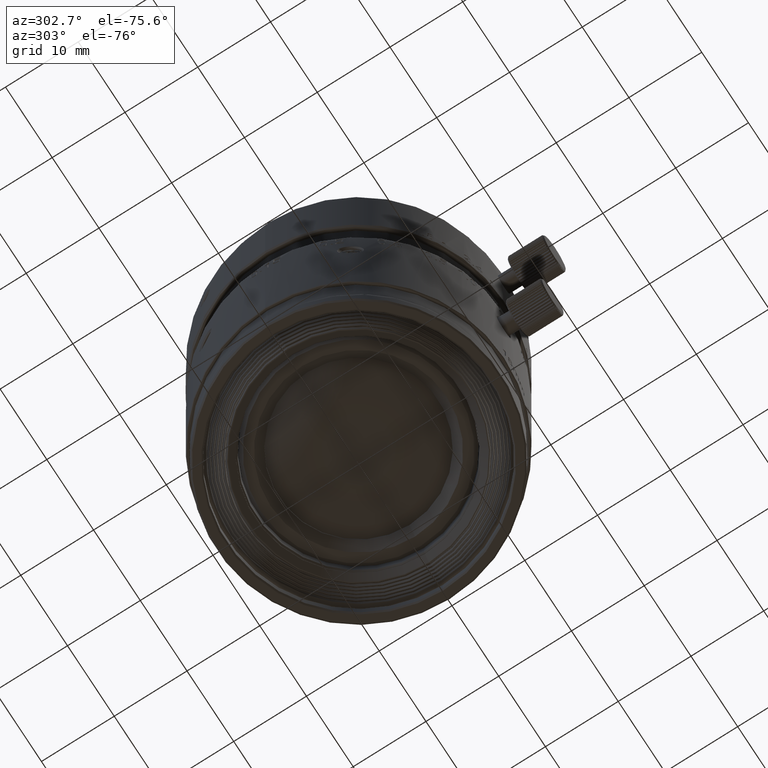
[diagram: clean part render]
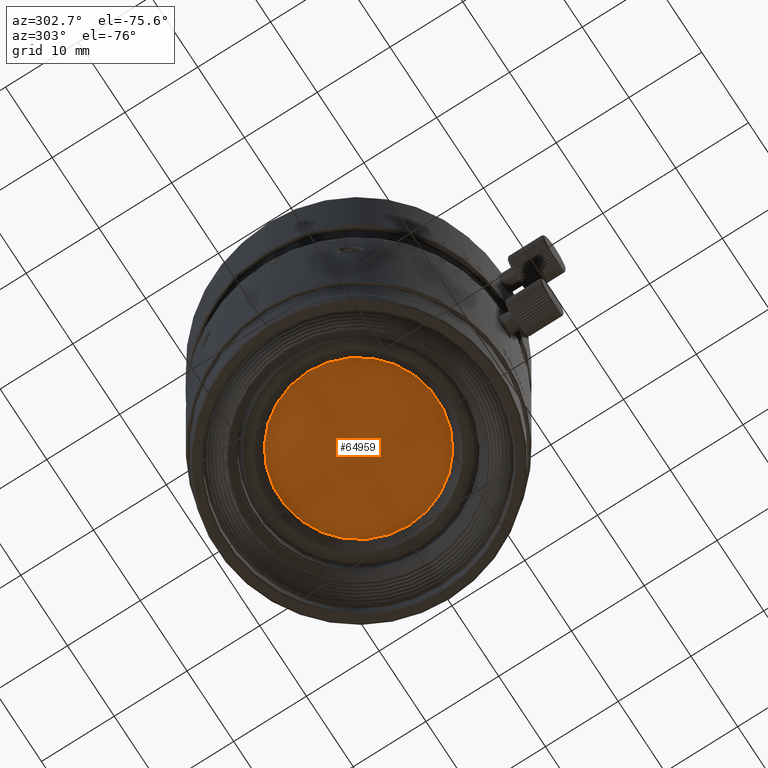
[diagram: same view with one face highlighted and labeled with its STEP entity id]
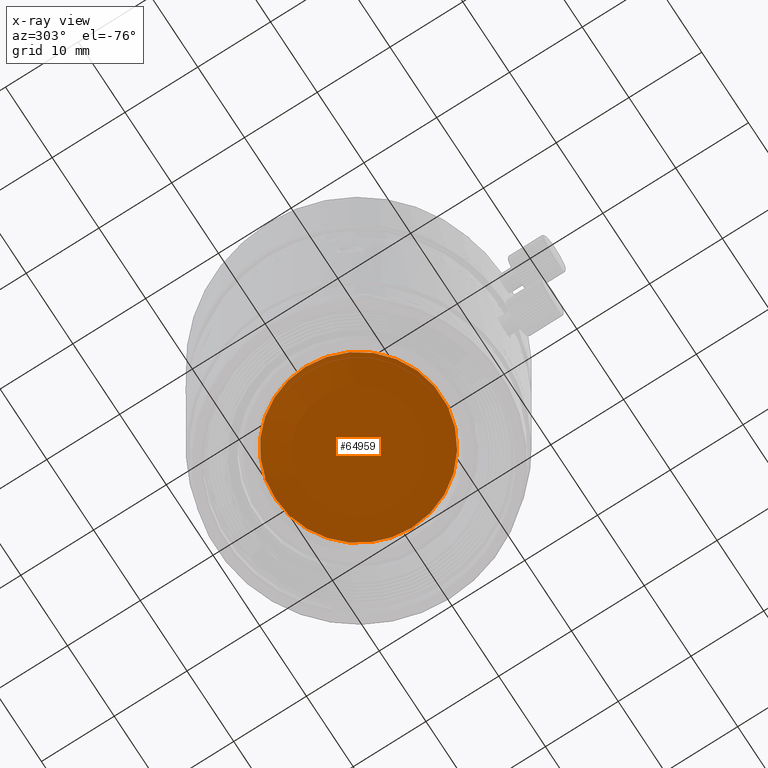
[diagram: x-ray of the same camera — body ghosted, the highlighted face saturated]
A machine part, auxiliary view. The second image highlights one B-rep face of the part: STEP entity #64959.
The next image is the same camera in x-ray: the body ghosted, the highlighted face saturated — about 0% of this face is hidden behind the body in this view.
In plain terms, the highlighted spherical surface has radius 24.86 mm.
Its self-contained STEP definition (entity closure, byte-faithful):
#10940 = CARTESIAN_POINT ( 'NONE',  ( 11.41075053257999983, 0.000000000000000000, 2.773479851205000291 ) ) ;
#14610 = CIRCLE ( 'NONE', #54783, 11.41075053257999983 ) ;
#15510 = DIRECTION ( 'NONE',  ( -1.000000000000000000, 0.000000000000000000, 0.000000000000000000 ) ) ;
#15941 = AXIS2_PLACEMENT_3D ( 'NONE', #50958, #76141, #38323 ) ;
#18785 = DIRECTION ( 'NONE',  ( 0.000000000000000000, 1.000000000000000000, 0.000000000000000000 ) ) ;
#22495 = ORIENTED_EDGE ( 'NONE', *, *, #34755, .T. ) ;
#24037 = CIRCLE ( 'NONE', #15941, 11.41075053257999983 ) ;
#28497 = CARTESIAN_POINT ( 'NONE',  ( 0.000000000000000000, 0.000000000000000000, 2.773479851205000291 ) ) ;
#31369 = FACE_OUTER_BOUND ( 'NONE', #74355, .T. ) ;
#34755 = EDGE_CURVE ( 'NONE', #42633, #53459, #24037, .T. ) ;
#38323 = DIRECTION ( 'NONE',  ( 1.000000000000000000, 0.000000000000000000, 0.000000000000000000 ) ) ;
#42633 = VERTEX_POINT ( 'NONE', #10940 ) ;
#50958 = CARTESIAN_POINT ( 'NONE',  ( 0.000000000000000000, 0.000000000000000000, 2.773479851205000291 ) ) ;
#53161 = EDGE_CURVE ( 'NONE', #53459, #42633, #14610, .T. ) ;
#53459 = VERTEX_POINT ( 'NONE', #64627 ) ;
#54783 = AXIS2_PLACEMENT_3D ( 'NONE', #28497, #78897, #15510 ) ;
#64627 = CARTESIAN_POINT ( 'NONE',  ( -11.41075053257999983, 0.000000000000000000, 2.773479851205000291 ) ) ;
#64959 = ADVANCED_FACE ( 'NONE', ( #31369 ), #77136, .T. ) ;
#69149 = DIRECTION ( 'NONE',  ( 0.000000000000000000, 0.000000000000000000, 1.000000000000000000 ) ) ;
#74355 = EDGE_LOOP ( 'NONE', ( #79612, #22495 ) ) ;
#76141 = DIRECTION ( 'NONE',  ( 0.000000000000000000, 0.000000000000000000, -1.000000000000000000 ) ) ;
#76284 = CARTESIAN_POINT ( 'NONE',  ( 0.000000000000000000, 0.000000000000000000, 24.85999999999999943 ) ) ;
#77136 = SPHERICAL_SURFACE ( 'NONE', #82448, 24.85999999999999943 ) ;
#78897 = DIRECTION ( 'NONE',  ( 0.000000000000000000, 0.000000000000000000, -1.000000000000000000 ) ) ;
#79612 = ORIENTED_EDGE ( 'NONE', *, *, #53161, .T. ) ;
#82448 = AXIS2_PLACEMENT_3D ( 'NONE', #76284, #69149, #18785 ) ;